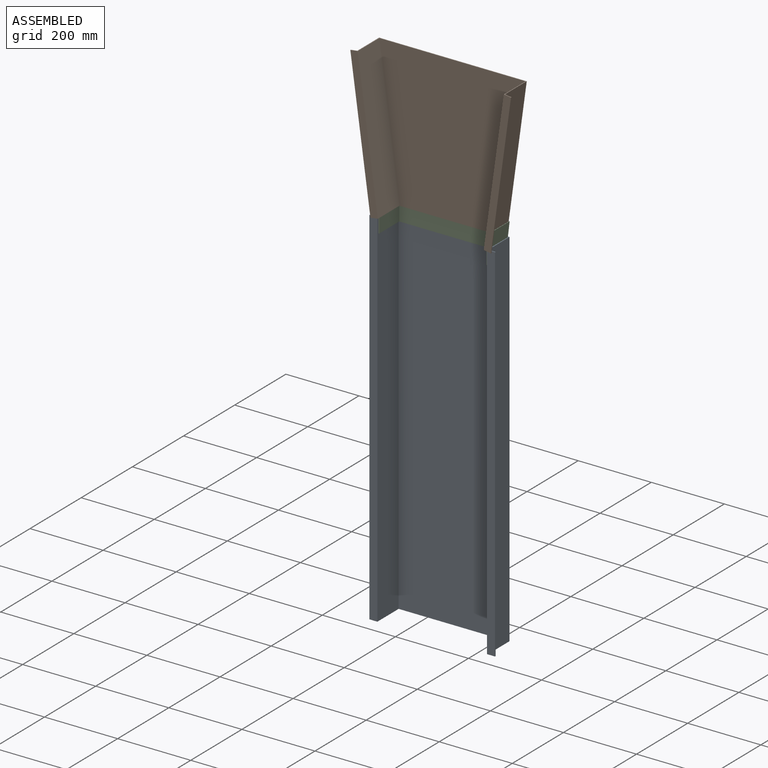
[diagram: assembled view]
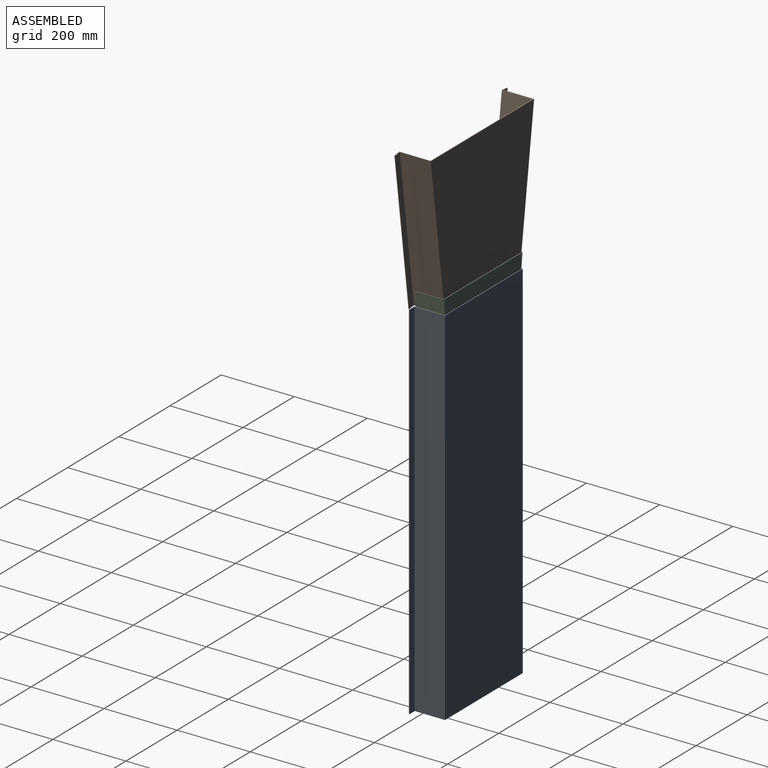
[diagram: assembled view, second angle]
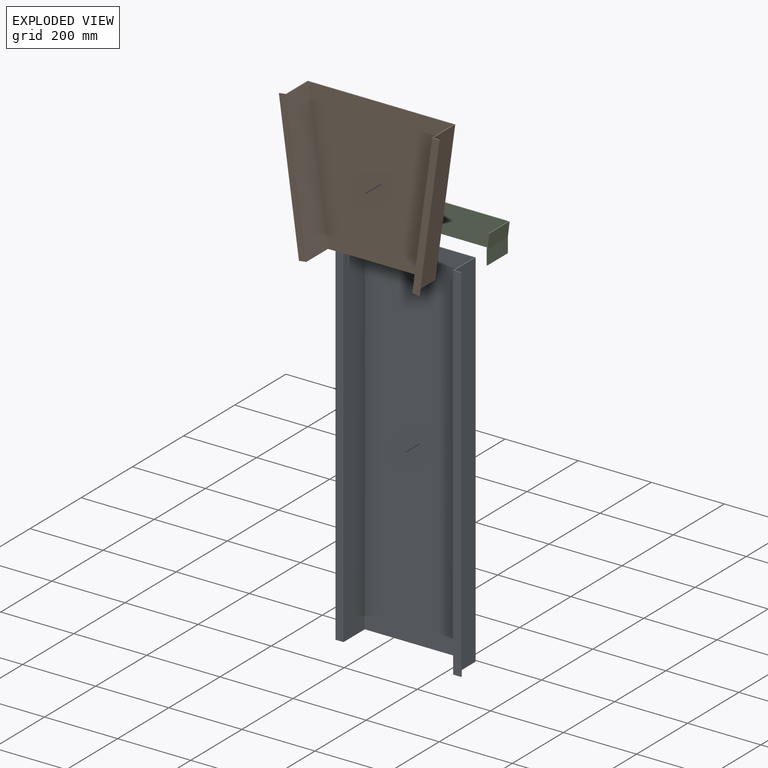
[diagram: exploded view]
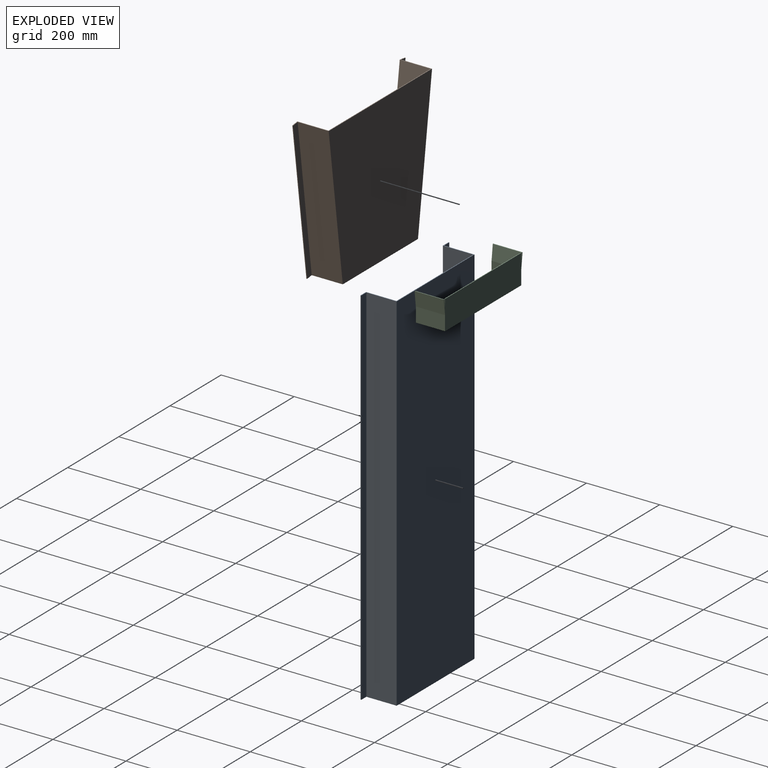
[diagram: exploded view, second angle]
ASSEMBLY  parts=3 mates=2
PART A: 14 faces, bbox 344x85x1000 mm
  f0: plane 1000x83mm, normal (1,0,0), area 83000mm2, adj f2,f3,f5,f12
  f1: plane 1000x83mm, normal (-1,0,0), area 83000mm2, adj f2,f3,f5,f10
  f2: plane 344x85mm, normal (0,0,1), area 1020mm2, adj f0,f1,f4,f5,f6,f7,f8,f9
  f3: plane 344x85mm, normal (0,0,-1), area 1020mm2, adj f0,f1,f4,f5,f6,f7,f8,f9
  f4: plane 1000x300mm, normal (0,-1,0), area 300000mm2, adj f2,f3,f6,f8
  f5: plane 1000x304mm, normal (0,1,0), area 304000mm2, adj f0,f1,f2,f3
  f6: plane 1000x83mm, normal (-1,0,0), area 83000mm2, adj f2,f3,f4,f7
  f7: plane 1000x22mm, normal (0,-1,0), area 22000mm2, adj f2,f3,f6,f13
  f8: plane 1000x83mm, normal (1,0,0), area 83000mm2, adj f2,f3,f4,f9
  f9: plane 1000x22mm, normal (0,-1,0), area 22000mm2, adj f2,f3,f8,f11
  f10: plane 1000x20mm, normal (0,1,0), area 20000mm2, adj f1,f2,f3,f11
  f11: plane 1000x2mm, normal (-1,0,0), area 2000mm2, adj f2,f3,f9,f10
  f12: plane 1000x20mm, normal (0,1,0), area 20000mm2, adj f0,f2,f3,f13
  f13: plane 1000x2mm, normal (1,0,0), area 2000mm2, adj f2,f3,f7,f12
PART B: 18 faces, bbox 439.7x87x402.5 mm
  f0: plane 400x85mm, normal (-0.99,0,-0.14), area 34319.9mm2, adj f1,f2,f4,f11
  f1: plane 404x87mm, normal (0,0,1), area 1148mm2, adj f0,f3,f4,f5,f6,f7,f8,f9
  f2: plane 294x87mm, normal (0,0,-1), area 928mm2, adj f0,f3,f4,f5,f6,f7,f8,f9
  f3: plane 400x400mm, normal (0,-1,0), area 138000mm2, adj f1,f2,f5,f8
  f4: plane 404x400mm, normal (0,1,0), area 139600mm2, adj f0,f1,f2,f6
  f5: plane 400x85mm, normal (-0.99,0,0.14), area 34319.9mm2, adj f1,f2,f3,f7
  f6: plane 400x85mm, normal (0.99,0,-0.14), area 34319.9mm2, adj f1,f2,f4,f15
  f7: plane 402.45x74.83mm, normal (0,-1,0), area 8067.7mm2, adj f1,f2,f5,f14,f16,f17
  f8: plane 400x85mm, normal (0.99,0,0.14), area 34319.9mm2, adj f1,f2,f3,f9
  f9: plane 402.45x74.83mm, normal (0,-1,0), area 8067.7mm2, adj f1,f2,f8,f10,f12,f13
  f10: plane 17.83x2.45mm, normal (-0.14,0,0.99), area 36mm2, adj f1,f9,f11,f13
  f11: plane 402.45x72.83mm, normal (0,1,0), area 7267.7mm2, adj f0,f10,f12,f13
  f12: plane 17.83x2.45mm, normal (0.14,0,-0.99), area 36mm2, adj f2,f9,f11,f13
  f13: plane 400x55mm, normal (-0.99,0,-0.14), area 807.5mm2, adj f9,f10,f11,f12
  f14: plane 17.83x2.45mm, normal (-0.14,0,-0.99), area 36mm2, adj f2,f7,f15,f17
  f15: plane 402.45x72.83mm, normal (0,1,0), area 7267.7mm2, adj f6,f14,f16,f17
  f16: plane 17.83x2.45mm, normal (0.14,0,0.99), area 36mm2, adj f1,f7,f15,f17
  f17: plane 400x55mm, normal (0.99,0,-0.14), area 807.5mm2, adj f7,f14,f15,f16
PART C: 18 faces, bbox 307.6x80x80 mm
  f0: plane 298x2mm, normal (0,0,1), area 596mm2, adj f1,f3,f4,f5
  f1: plane 23.33x2mm, normal (-1,0,0), area 46.7mm2, adj f0,f4,f5,f12
  f2: plane 298x80mm, normal (0,0,-1), area 908mm2, adj f4,f5,f6,f8,f11,f13,f16,f17
  f3: plane 23.33x2mm, normal (1,0,0), area 46.7mm2, adj f0,f4,f5,f7
  f4: plane 298x80mm, normal (0,-1,0), area 23646.7mm2, adj f0,f1,f2,f3,f6,f7,f12,f13
  f5: plane 307.6x80mm, normal (0,1,0), area 23966.7mm2, adj f0,f1,f2,f3,f7,f8,f9,f10
  f6: plane 78x40mm, normal (-1,0,0), area 3120mm2, adj f2,f4,f7,f11
  f7: plane 80x40mm, normal (-0.99,0,0.12), area 3189.4mm2, adj f3,f4,f5,f6,f10,f11
  f8: plane 80x40mm, normal (1,0,0), area 3200mm2, adj f2,f5,f9,f11
  f9: plane 80x40mm, normal (0.99,0,-0.12), area 3223mm2, adj f5,f8,f10,f11
  f10: plane 80x2mm, normal (0,0,1), area 160mm2, adj f5,f7,f9,f11
  f11: plane 80x6.8mm, normal (0,-1,0), area 160mm2, adj f2,f6,f7,f8,f9,f10
  f12: plane 80x40mm, normal (0.99,0,0.12), area 3189.4mm2, adj f1,f4,f5,f13,f14,f17
  f13: plane 78x40mm, normal (1,0,0), area 3120mm2, adj f2,f4,f12,f17
  f14: plane 80x2mm, normal (0,0,1), area 160mm2, adj f5,f12,f15,f17
  f15: plane 80x40mm, normal (-0.99,0,-0.12), area 3223mm2, adj f5,f14,f16,f17
  f16: plane 80x40mm, normal (-1,0,0), area 3200mm2, adj f2,f5,f15,f17
  f17: plane 80x6.8mm, normal (0,-1,0), area 160mm2, adj f2,f12,f13,f14,f15,f16
PLACE A t=(-301.59,-311.59,-182.15)mm
PLACE B t=(-263.53,-315.59,547.02)mm
PLACE C t=(-301.59,-313.59,317.73)mm
MATE parallel A.f4 <-> C.f5  axis (0,-1,0) through (-301.59,-313.59,317.85)mm
MATE parallel C.f4 <-> B.f4  axis (0,-1,0) through (-301.59,-315.59,317.85)mm
